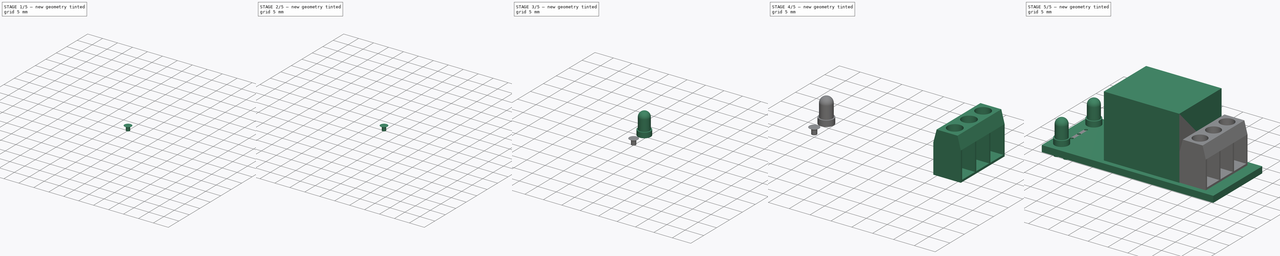
[diagram: build sequence overview — one tinted view per stage of 5, left to right]
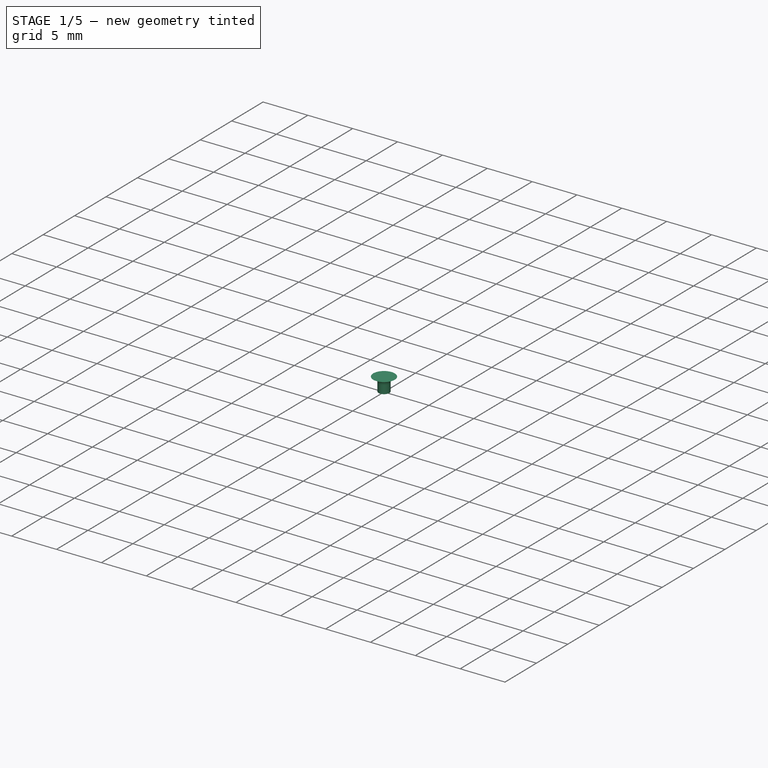
[diagram: stage 1 of 5 — iso view after this stage's code; geometry added in this stage tinted green]
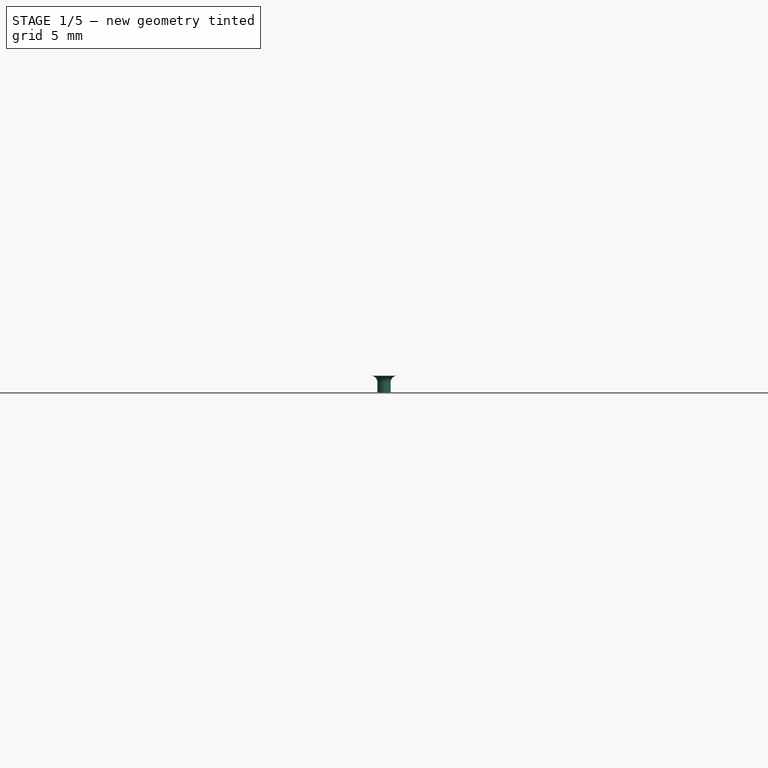
[diagram: stage 1 of 5 — front view after this stage's code; geometry added in this stage tinted green]
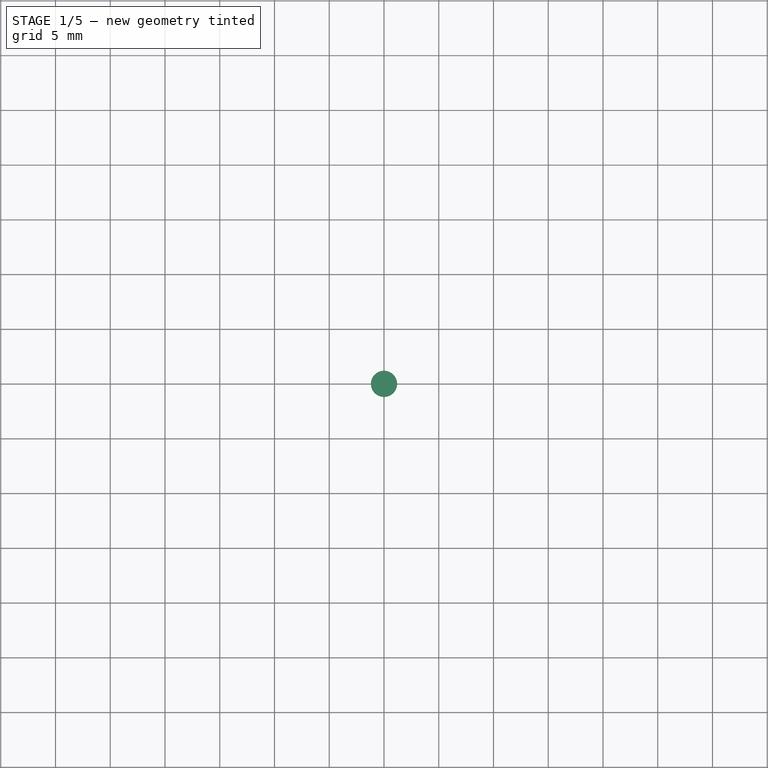
[diagram: stage 1 of 5 — top view after this stage's code; geometry added in this stage tinted green]
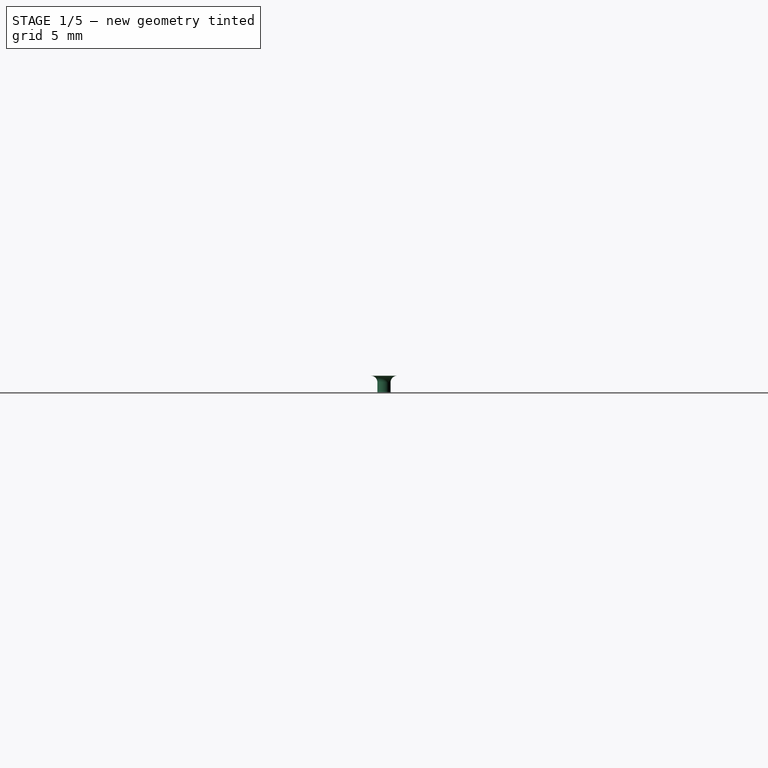
[diagram: stage 1 of 5 — right view after this stage's code; geometry added in this stage tinted green]
FCSTD DOCUMENT  (FreeCAD 0.19R23323 (Git))
Label: Relay 5V 250V JQC-3FF-S-Z
License: All rights reserved
LicenseURL: http://en.wikipedia.org/wiki/All_rights_reserved
objects: Sketcher::SketchObject×14, PartDesign::Body×12, PartDesign::Revolution×9, PartDesign::Pad×3, PartDesign::Pocket×2, Part::Compound×1
note: 55 computed .brp shape members not serialized (recipe doc carries the construction recipe); baked Part::Feature solids carry a one-line shape summary decoded from their .brp

FEATURE [PartDesign::Body] Body008  label="Pin004"
  Group = -> [Sketch010,Revolution005]
  Origin = -> Origin008
  Placement = pos=(1.7,-5.9,0) rot=(0,0,1;0rad)
  Tip = -> Revolution005
FEATURE [Sketcher::SketchObject] Sketch011
  MapMode = 5
  Placement = pos=(0,0,0) rot=(0.57735,0.57735,0.57735;2.0944rad)
  Support = -> [YZ_Plane005]
  sketch-geometry (5):
    g0: LineSegment StartX=1.2 StartY=0 StartZ=0 EndX=0 EndY=0 EndZ=0
    g1: LineSegment StartX=0 StartY=0 StartZ=0 EndX=0 EndY=-1.5 EndZ=0
    g2: LineSegment StartX=0 StartY=-1.5 StartZ=0 EndX=0.6 EndY=-1.5 EndZ=0
    g3: LineSegment StartX=0.6 StartY=-1.5 StartZ=0 EndX=0.6 EndY=-0.6 EndZ=0
    g4: ArcOfCircle CenterX=1.2 CenterY=-0.6 CenterZ=0 NormalX=0 NormalY=0 NormalZ=1 AngleXU=0 Radius=0.6 StartAngle=1.5708 EndAngle=3.14159
  constraints (13):
    c: PointOnObject(g0,g-1)
    c: Coincident(g0,g-1)
    c: Coincident(g0,g1)
    c: PointOnObject(g1,g-2)
    c: Coincident(g1,g2)
    c: Horizontal(g2)
    c: Coincident(g2,g3)
    c: Vertical(g3)
    c: Tangent(g0,g4) = -1.5708
    c: Tangent(g3,g4) = 1.5708
    c: DistanceX(g2,g2) = 0.6
    c: DistanceY(g1,g1) = 1.5
    c: Radius(g4) = 0.6
FEATURE [PartDesign::Revolution] Revolution006
  Angle = 360
  Axis = (-2e-16,3e-16,1)
  Base = (0,0,0)
  Placement = pos=(0,0,0) rot=(0.57735,0.57735,0.57735;2.0944rad)
  Profile = -> Sketch011
  ReferenceAxis = -> Sketch011 [V_Axis]
  Reversed = true
FEATURE [PartDesign::Body] Body009  label="Pin005"
  Group = -> [Sketch011,Revolution006]
  Origin = -> Origin009
  Placement = pos=(37.1,-4.8,0) rot=(0,0,1;0rad)
  Tip = -> Revolution006
FEATURE [Sketcher::SketchObject] Sketch012
  MapMode = 5
  Placement = pos=(0,0,0) rot=(0.57735,0.57735,0.57735;2.0944rad)
  Support = -> [YZ_Plane005]
  sketch-geometry (5):
    g0: LineSegment StartX=1.2 StartY=0 StartZ=0 EndX=0 EndY=0 EndZ=0
    g1: LineSegment StartX=0 StartY=0 StartZ=0 EndX=0 EndY=-1.5 EndZ=0
    g2: LineSegment StartX=0 StartY=-1.5 StartZ=0 EndX=0.6 EndY=-1.5 EndZ=0
    g3: LineSegment StartX=0.6 StartY=-1.5 StartZ=0 EndX=0.6 EndY=-0.6 EndZ=0
    g4: ArcOfCircle CenterX=1.2 CenterY=-0.6 CenterZ=0 NormalX=0 NormalY=0 NormalZ=1 AngleXU=0 Radius=0.6 StartAngle=1.5708 EndAngle=3.14159
  constraints (13):
    c: PointOnObject(g0,g-1)
    c: Coincident(g0,g-1)
    c: Coincident(g0,g1)
    c: PointOnObject(g1,g-2)
    c: Coincident(g1,g2)
    c: Horizontal(g2)
    c: Coincident(g2,g3)
    c: Vertical(g3)
    c: Tangent(g0,g4) = -1.5708
    c: Tangent(g3,g4) = 1.5708
    c: DistanceX(g2,g2) = 0.6
    c: DistanceY(g1,g1) = 1.5
    c: Radius(g4) = 0.6
FEATURE [PartDesign::Revolution] Revolution007
  Angle = 360
  Axis = (-2e-16,3e-16,1)
  Base = (0,0,0)
  Placement = pos=(0,0,0) rot=(0.57735,0.57735,0.57735;2.0944rad)
  Profile = -> Sketch012
  ReferenceAxis = -> Sketch012 [V_Axis]
  Reversed = true
FEATURE [PartDesign::Body] Body010  label="Pin006"
  Group = -> [Sketch012,Revolution007]
  Origin = -> Origin010
  Placement = pos=(37.1,9e-16,0) rot=(0,0,1;0rad)
  Tip = -> Revolution007
FEATURE [Sketcher::SketchObject] Sketch013
  MapMode = 5
  Placement = pos=(0,0,0) rot=(0.57735,0.57735,0.57735;2.0944rad)
  Support = -> [YZ_Plane005]
  sketch-geometry (5):
    g0: LineSegment StartX=1.2 StartY=0 StartZ=0 EndX=0 EndY=0 EndZ=0
    g1: LineSegment StartX=0 StartY=0 StartZ=0 EndX=0 EndY=-1.5 EndZ=0
    g2: LineSegment StartX=0 StartY=-1.5 StartZ=0 EndX=0.6 EndY=-1.5 EndZ=0
    g3: LineSegment StartX=0.6 StartY=-1.5 StartZ=0 EndX=0.6 EndY=-0.6 EndZ=0
    g4: ArcOfCircle CenterX=1.2 CenterY=-0.6 CenterZ=0 NormalX=0 NormalY=0 NormalZ=1 AngleXU=0 Radius=0.6 StartAngle=1.5708 EndAngle=3.14159
  constraints (13):
    c: PointOnObject(g0,g-1)
    c: Coincident(g0,g-1)
    c: Coincident(g0,g1)
    c: PointOnObject(g1,g-2)
    c: Coincident(g1,g2)
    c: Horizontal(g2)
    c: Coincident(g2,g3)
    c: Vertical(g3)
    c: Tangent(g0,g4) = -1.5708
    c: Tangent(g3,g4) = 1.5708
    c: DistanceX(g2,g2) = 0.6
    c: DistanceY(g1,g1) = 1.5
    c: Radius(g4) = 0.6
FEATURE [PartDesign::Revolution] Revolution008
  Angle = 360
  Axis = (-2e-16,3e-16,1)
  Base = (0,0,0)
  Placement = pos=(0,0,0) rot=(0.57735,0.57735,0.57735;2.0944rad)
  Profile = -> Sketch013
  ReferenceAxis = -> Sketch013 [V_Axis]
  Reversed = true
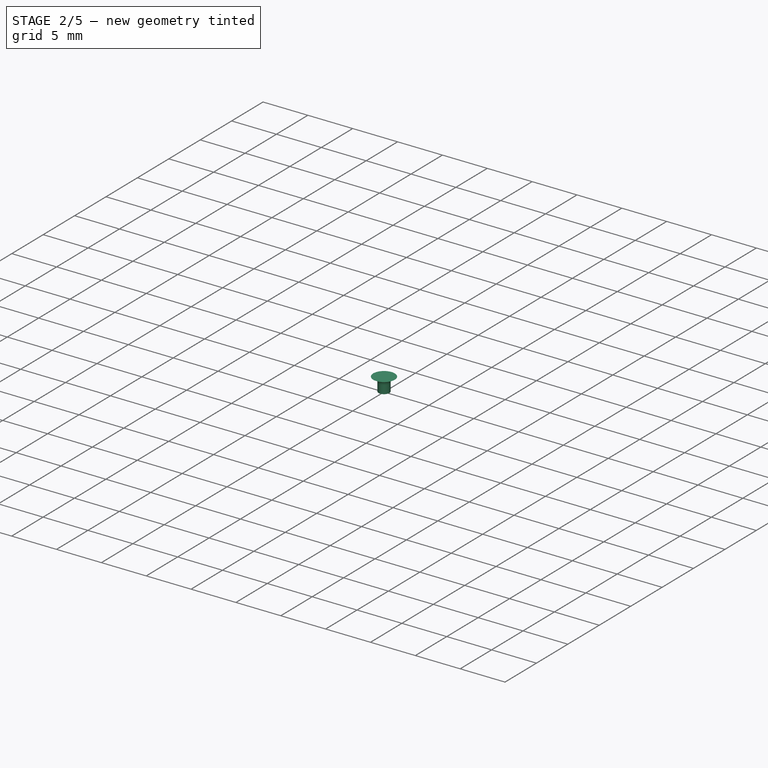
[diagram: stage 2 of 5 — iso view after this stage's code; geometry added in this stage tinted green]
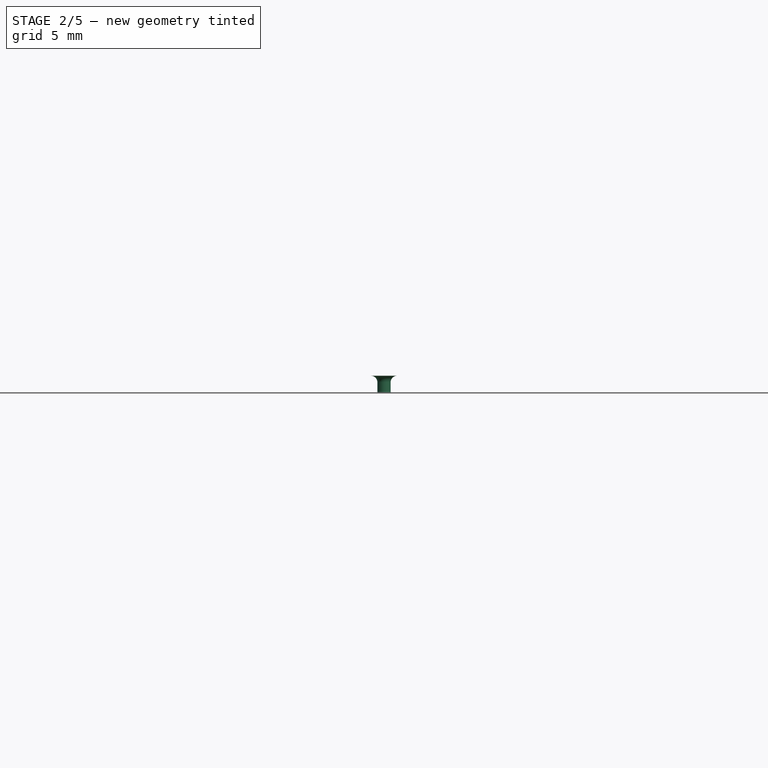
[diagram: stage 2 of 5 — front view after this stage's code; geometry added in this stage tinted green]
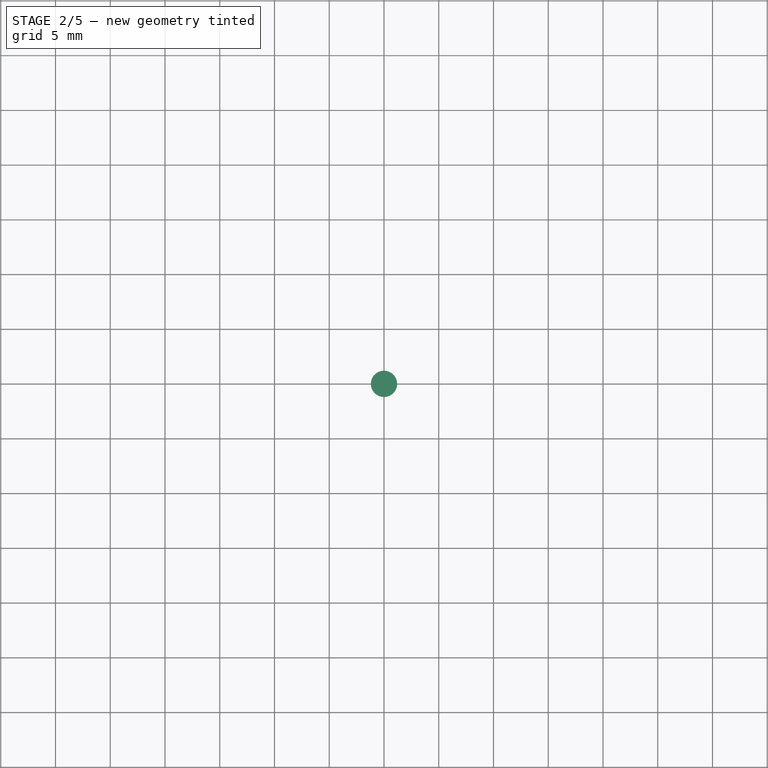
[diagram: stage 2 of 5 — top view after this stage's code; geometry added in this stage tinted green]
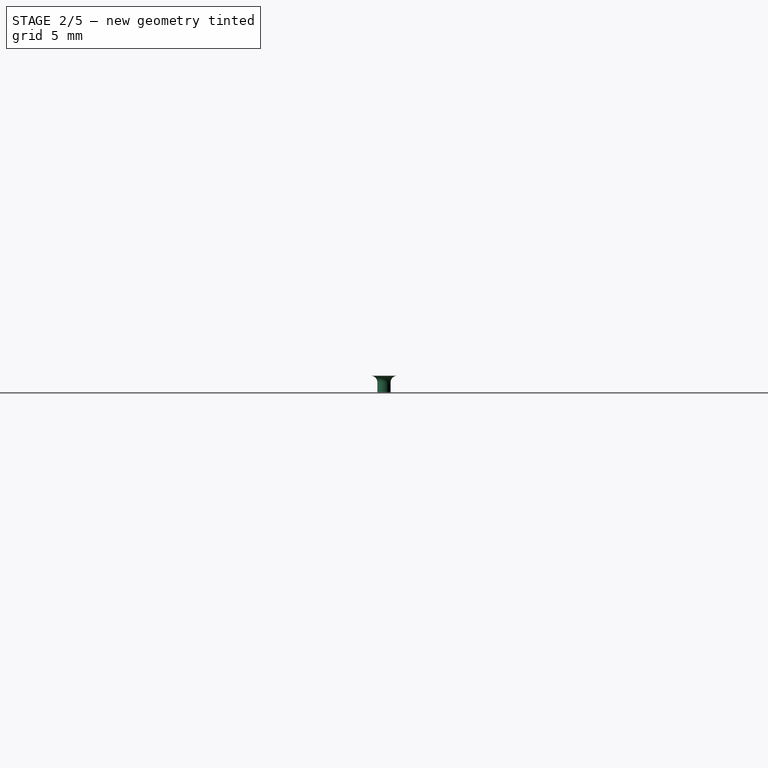
[diagram: stage 2 of 5 — right view after this stage's code; geometry added in this stage tinted green]
FEATURE [PartDesign::Body] Body005  label="Pin001"
  Group = -> [Sketch007,Revolution002]
  Origin = -> Origin005
  Placement = pos=(1.7,5.7,0) rot=(0,0,1;0rad)
  Tip = -> Revolution002
FEATURE [Sketcher::SketchObject] Sketch008
  MapMode = 5
  Placement = pos=(0,0,0) rot=(0.57735,0.57735,0.57735;2.0944rad)
  Support = -> [YZ_Plane005]
  sketch-geometry (5):
    g0: LineSegment StartX=1.2 StartY=0 StartZ=0 EndX=0 EndY=0 EndZ=0
    g1: LineSegment StartX=0 StartY=0 StartZ=0 EndX=0 EndY=-1.5 EndZ=0
    g2: LineSegment StartX=0 StartY=-1.5 StartZ=0 EndX=0.6 EndY=-1.5 EndZ=0
    g3: LineSegment StartX=0.6 StartY=-1.5 StartZ=0 EndX=0.6 EndY=-0.6 EndZ=0
    g4: ArcOfCircle CenterX=1.2 CenterY=-0.6 CenterZ=0 NormalX=0 NormalY=0 NormalZ=1 AngleXU=0 Radius=0.6 StartAngle=1.5708 EndAngle=3.14159
  constraints (13):
    c: PointOnObject(g0,g-1)
    c: Coincident(g0,g-1)
    c: Coincident(g0,g1)
    c: PointOnObject(g1,g-2)
    c: Coincident(g1,g2)
    c: Horizontal(g2)
    c: Coincident(g2,g3)
    c: Vertical(g3)
    c: Tangent(g0,g4) = -1.5708
    c: Tangent(g3,g4) = 1.5708
    c: DistanceX(g2,g2) = 0.6
    c: DistanceY(g1,g1) = 1.5
    c: Radius(g4) = 0.6
FEATURE [PartDesign::Revolution] Revolution003
  Angle = 360
  Axis = (-2e-16,3e-16,1)
  Base = (0,0,0)
  Placement = pos=(0,0,0) rot=(0.57735,0.57735,0.57735;2.0944rad)
  Profile = -> Sketch008
  ReferenceAxis = -> Sketch008 [V_Axis]
  Reversed = true
FEATURE [PartDesign::Body] Body006  label="Pin002"
  Group = -> [Sketch008,Revolution003]
  Origin = -> Origin006
  Placement = pos=(4.1,5.7,0) rot=(0,0,1;0rad)
  Tip = -> Revolution003
FEATURE [Sketcher::SketchObject] Sketch009
  MapMode = 5
  Placement = pos=(0,0,0) rot=(0.57735,0.57735,0.57735;2.0944rad)
  Support = -> [YZ_Plane005]
  sketch-geometry (5):
    g0: LineSegment StartX=1.2 StartY=0 StartZ=0 EndX=0 EndY=0 EndZ=0
    g1: LineSegment StartX=0 StartY=0 StartZ=0 EndX=0 EndY=-1.5 EndZ=0
    g2: LineSegment StartX=0 StartY=-1.5 StartZ=0 EndX=0.6 EndY=-1.5 EndZ=0
    g3: LineSegment StartX=0.6 StartY=-1.5 StartZ=0 EndX=0.6 EndY=-0.6 EndZ=0
    g4: ArcOfCircle CenterX=1.2 CenterY=-0.6 CenterZ=0 NormalX=0 NormalY=0 NormalZ=1 AngleXU=0 Radius=0.6 StartAngle=1.5708 EndAngle=3.14159
  constraints (13):
    c: PointOnObject(g0,g-1)
    c: Coincident(g0,g-1)
    c: Coincident(g0,g1)
    c: PointOnObject(g1,g-2)
    c: Coincident(g1,g2)
    c: Horizontal(g2)
    c: Coincident(g2,g3)
    c: Vertical(g3)
    c: Tangent(g0,g4) = -1.5708
    c: Tangent(g3,g4) = 1.5708
    c: DistanceX(g2,g2) = 0.6
    c: DistanceY(g1,g1) = 1.5
    c: Radius(g4) = 0.6
FEATURE [PartDesign::Revolution] Revolution004
  Angle = 360
  Axis = (-2e-16,3e-16,1)
  Base = (0,0,0)
  Placement = pos=(0,0,0) rot=(0.57735,0.57735,0.57735;2.0944rad)
  Profile = -> Sketch009
  ReferenceAxis = -> Sketch009 [V_Axis]
  Reversed = true
FEATURE [PartDesign::Body] Body007  label="Pin003"
  Group = -> [Sketch009,Revolution004]
  Origin = -> Origin007
  Placement = pos=(4.1,-5.9,0) rot=(0,0,1;0rad)
  Tip = -> Revolution004
FEATURE [Sketcher::SketchObject] Sketch010
  MapMode = 5
  Placement = pos=(0,0,0) rot=(0.57735,0.57735,0.57735;2.0944rad)
  Support = -> [YZ_Plane005]
  sketch-geometry (5):
    g0: LineSegment StartX=1.2 StartY=0 StartZ=0 EndX=0 EndY=0 EndZ=0
    g1: LineSegment StartX=0 StartY=0 StartZ=0 EndX=0 EndY=-1.5 EndZ=0
    g2: LineSegment StartX=0 StartY=-1.5 StartZ=0 EndX=0.6 EndY=-1.5 EndZ=0
    g3: LineSegment StartX=0.6 StartY=-1.5 StartZ=0 EndX=0.6 EndY=-0.6 EndZ=0
    g4: ArcOfCircle CenterX=1.2 CenterY=-0.6 CenterZ=0 NormalX=0 NormalY=0 NormalZ=1 AngleXU=0 Radius=0.6 StartAngle=1.5708 EndAngle=3.14159
  constraints (13):
    c: PointOnObject(g0,g-1)
    c: Coincident(g0,g-1)
    c: Coincident(g0,g1)
    c: PointOnObject(g1,g-2)
    c: Coincident(g1,g2)
    c: Horizontal(g2)
    c: Coincident(g2,g3)
    c: Vertical(g3)
    c: Tangent(g0,g4) = -1.5708
    c: Tangent(g3,g4) = 1.5708
    c: DistanceX(g2,g2) = 0.6
    c: DistanceY(g1,g1) = 1.5
    c: Radius(g4) = 0.6
FEATURE [PartDesign::Revolution] Revolution005
  Angle = 360
  Axis = (-2e-16,3e-16,1)
  Base = (0,0,0)
  Placement = pos=(0,0,0) rot=(0.57735,0.57735,0.57735;2.0944rad)
  Profile = -> Sketch010
  ReferenceAxis = -> Sketch010 [V_Axis]
  Reversed = true
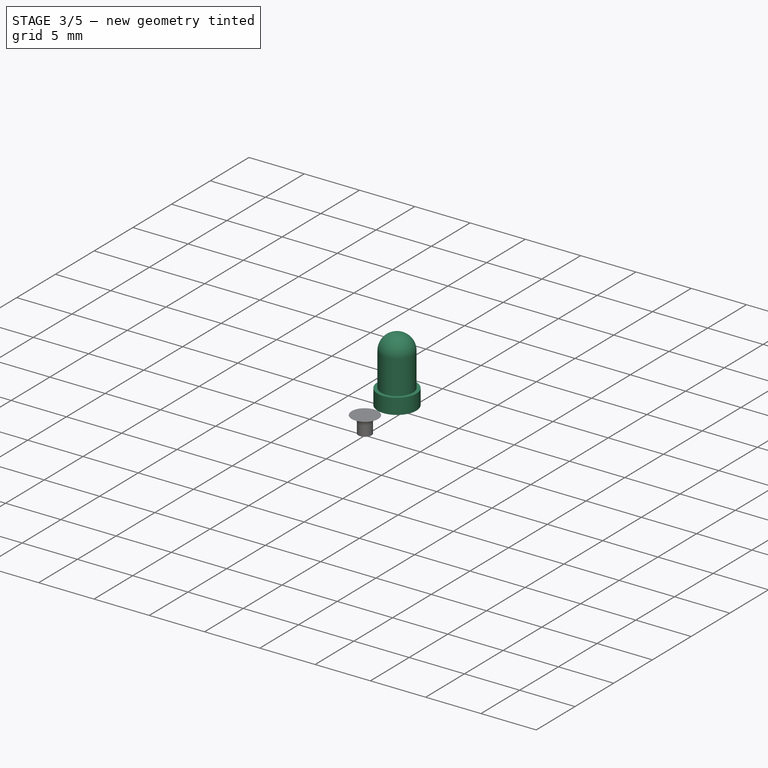
[diagram: stage 3 of 5 — iso view after this stage's code; geometry added in this stage tinted green]
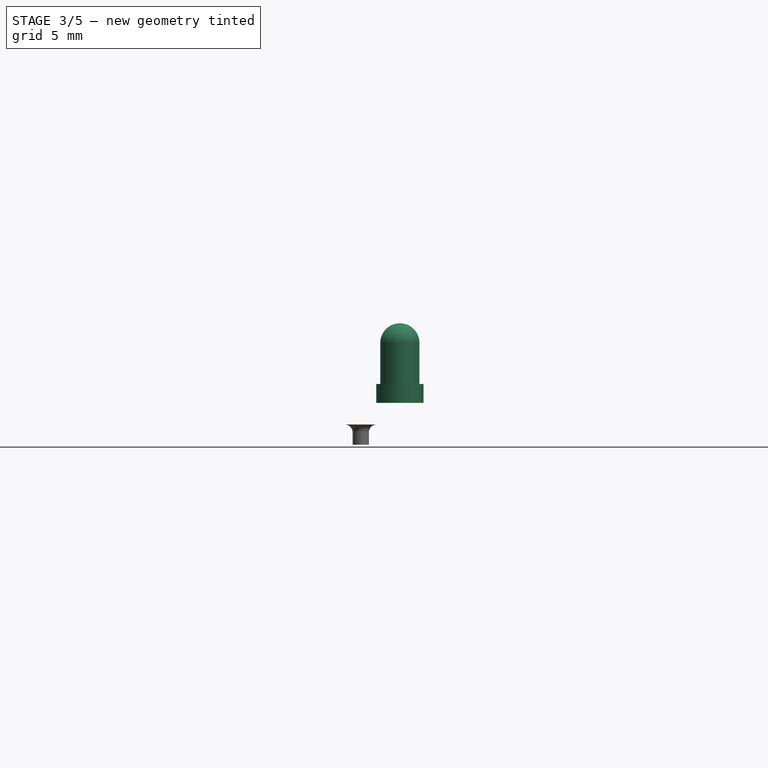
[diagram: stage 3 of 5 — front view after this stage's code; geometry added in this stage tinted green]
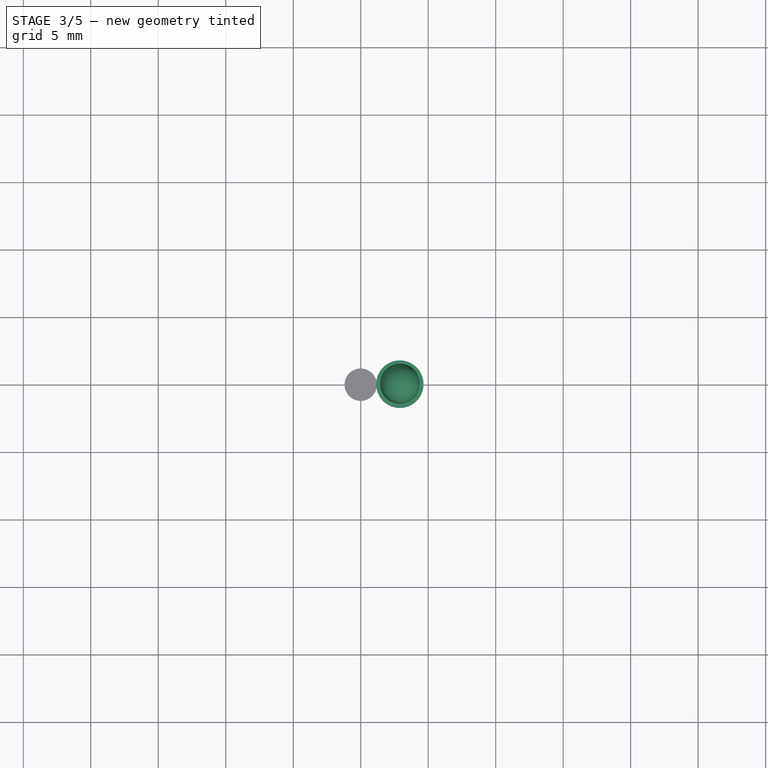
[diagram: stage 3 of 5 — top view after this stage's code; geometry added in this stage tinted green]
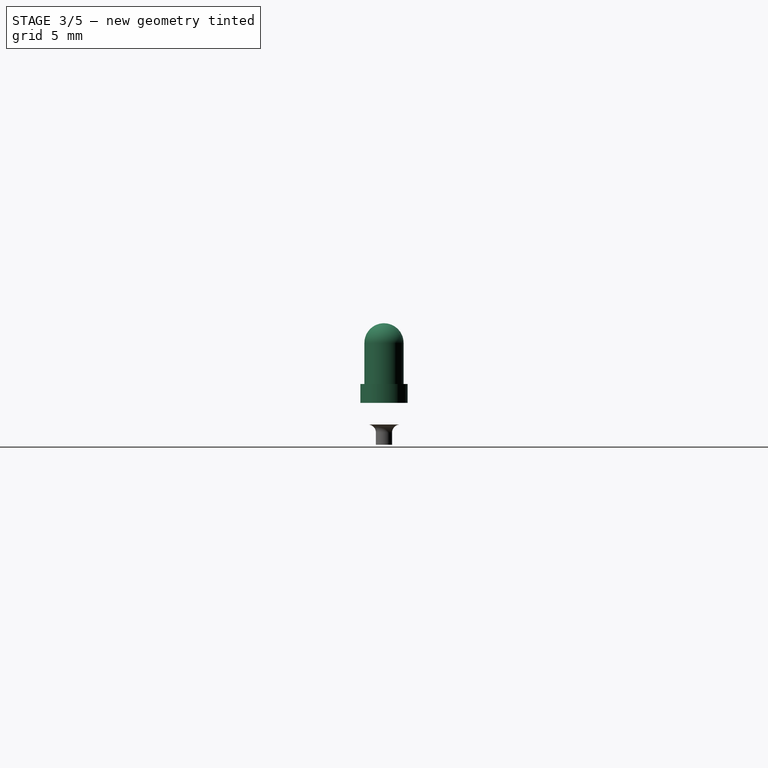
[diagram: stage 3 of 5 — right view after this stage's code; geometry added in this stage tinted green]
FEATURE [PartDesign::Body] Body002  label="Connectors"
  Group = -> [Sketch002,Pad002,Sketch003,Pocket,Sketch004,Pocket001]
  Origin = -> Origin002
  Tip = -> Pocket001
FEATURE [Sketcher::SketchObject] Sketch005
  AttachmentOffset = pos=(0,0,2.9) rot=(0,0,1;0rad)
  MapMode = 5
  Placement = pos=(2.9,-6e-16,6e-16) rot=(0.57735,0.57735,0.57735;2.0944rad)
  Support = -> [YZ_Plane003]
  sketch-geometry (6):
    g0: ArcOfCircle CenterX=0 CenterY=6.05 CenterZ=0 NormalX=0 NormalY=0 NormalZ=1 AngleXU=0 Radius=1.45 StartAngle=1.5708 EndAngle=3.14159
    g1: LineSegment StartX=-1.45 StartY=6.05 StartZ=0 EndX=-1.45 EndY=3 EndZ=0
    g2: LineSegment StartX=-1.45 StartY=3 StartZ=0 EndX=-1.75 EndY=3 EndZ=0
    g3: LineSegment StartX=-1.75 StartY=3 StartZ=0 EndX=-1.75 EndY=1.6 EndZ=0
    g4: LineSegment StartX=-1.75 StartY=1.6 StartZ=0 EndX=0 EndY=1.6 EndZ=0
    g5: LineSegment StartX=0 StartY=1.6 StartZ=0 EndX=0 EndY=7.5 EndZ=0
  constraints (18):
    c: Vertical(g1)
    c: Coincident(g1,g2)
    c: Coincident(g2,g3)
    c: Coincident(g3,g4)
    c: Horizontal(g4)
    c: Coincident(g4,g5)
    c: Coincident(g5,g0)
    c: Vertical(g5)
    c: Tangent(g0,g1) = -1.5708
    c: PointOnObject(g0,g5)
    c: Horizontal(g2)
    c: Vertical(g3)
    c: DistanceY(g3) = 1.6
    c: DistanceY(g0) = 7.5
    c: DistanceX(g0,g0) = 1.45
    c: DistanceX(g4,g4) = 1.75
    c: DistanceY(g2) = 3
    c: PointOnObject(g4,g-2)
FEATURE [PartDesign::Revolution] Revolution
  Angle = 360
  Axis = (-2e-16,3e-16,1)
  Base = (2.9,-6e-16,6e-16)
  Placement = pos=(0,0,0) rot=(0.57735,0.57735,0.57735;2.0944rad)
  Profile = -> Sketch005
  ReferenceAxis = -> Sketch005 [V_Axis]
FEATURE [PartDesign::Body] Body003  label="LEDgreen"
  Group = -> [Sketch005,Revolution]
  Origin = -> Origin003
  Placement = pos=(0,5.8,0) rot=(0,0,1;0rad)
  Tip = -> Revolution
FEATURE [Sketcher::SketchObject] Sketch006
  AttachmentOffset = pos=(0,0,2.9) rot=(0,0,1;0rad)
  MapMode = 5
  Placement = pos=(2.9,-6e-16,6e-16) rot=(0.57735,0.57735,0.57735;2.0944rad)
  Support = -> [YZ_Plane003]
  sketch-geometry (6):
    g0: ArcOfCircle CenterX=0 CenterY=6.05 CenterZ=0 NormalX=0 NormalY=0 NormalZ=1 AngleXU=0 Radius=1.45 StartAngle=1.5708 EndAngle=3.14159
    g1: LineSegment StartX=-1.45 StartY=6.05 StartZ=0 EndX=-1.45 EndY=3 EndZ=0
    g2: LineSegment StartX=-1.45 StartY=3 StartZ=0 EndX=-1.75 EndY=3 EndZ=0
    g3: LineSegment StartX=-1.75 StartY=3 StartZ=0 EndX=-1.75 EndY=1.6 EndZ=0
    g4: LineSegment StartX=-1.75 StartY=1.6 StartZ=0 EndX=0 EndY=1.6 EndZ=0
    g5: LineSegment StartX=1e-16 StartY=1.6 StartZ=0 EndX=1e-16 EndY=7.5 EndZ=0
  constraints (18):
    c: Vertical(g1)
    c: Coincident(g1,g2)
    c: Coincident(g2,g3)
    c: Coincident(g3,g4)
    c: Horizontal(g4)
    c: Coincident(g4,g5)
    c: Coincident(g5,g0)
    c: Vertical(g5)
    c: Tangent(g0,g1) = -1.5708
    c: PointOnObject(g0,g5)
    c: Horizontal(g2)
    c: Vertical(g3)
    c: DistanceY(g3) = 1.6
    c: DistanceY(g0) = 7.5
    c: DistanceX(g0,g0) = 1.45
    c: DistanceX(g4,g4) = 1.75
    c: DistanceY(g2) = 3
    c: PointOnObject(g4,g-2)
FEATURE [PartDesign::Revolution] Revolution001
  Angle = 360
  Axis = (-2e-16,3e-16,1)
  Base = (2.9,-6e-16,6e-16)
  Placement = pos=(0,0,0) rot=(0.57735,0.57735,0.57735;2.0944rad)
  Profile = -> Sketch006
  ReferenceAxis = -> Sketch006 [V_Axis]
FEATURE [PartDesign::Body] Body004  label="LEDred"
  Group = -> [Sketch006,Revolution001]
  Origin = -> Origin004
  Placement = pos=(0,-5.8,0) rot=(0,0,1;0rad)
  Tip = -> Revolution001
FEATURE [Sketcher::SketchObject] Sketch007
  MapMode = 5
  Placement = pos=(0,0,0) rot=(0.57735,0.57735,0.57735;2.0944rad)
  Support = -> [YZ_Plane005]
  sketch-geometry (5):
    g0: LineSegment StartX=1.2 StartY=0 StartZ=0 EndX=0 EndY=0 EndZ=0
    g1: LineSegment StartX=0 StartY=0 StartZ=0 EndX=0 EndY=-1.5 EndZ=0
    g2: LineSegment StartX=0 StartY=-1.5 StartZ=0 EndX=0.6 EndY=-1.5 EndZ=0
    g3: LineSegment StartX=0.6 StartY=-1.5 StartZ=0 EndX=0.6 EndY=-0.6 EndZ=0
    g4: ArcOfCircle CenterX=1.2 CenterY=-0.6 CenterZ=0 NormalX=0 NormalY=0 NormalZ=1 AngleXU=0 Radius=0.6 StartAngle=1.5708 EndAngle=3.14159
  constraints (13):
    c: PointOnObject(g0,g-1)
    c: Coincident(g0,g-1)
    c: Coincident(g0,g1)
    c: PointOnObject(g1,g-2)
    c: Coincident(g1,g2)
    c: Horizontal(g2)
    c: Coincident(g2,g3)
    c: Vertical(g3)
    c: Tangent(g0,g4) = -1.5708
    c: Tangent(g3,g4) = 1.5708
    c: DistanceX(g2,g2) = 0.6
    c: DistanceY(g1,g1) = 1.5
    c: Radius(g4) = 0.6
FEATURE [PartDesign::Revolution] Revolution002
  Angle = 360
  Axis = (-2e-16,3e-16,1)
  Base = (0,0,0)
  Placement = pos=(0,0,0) rot=(0.57735,0.57735,0.57735;2.0944rad)
  Profile = -> Sketch007
  ReferenceAxis = -> Sketch007 [V_Axis]
  Reversed = true
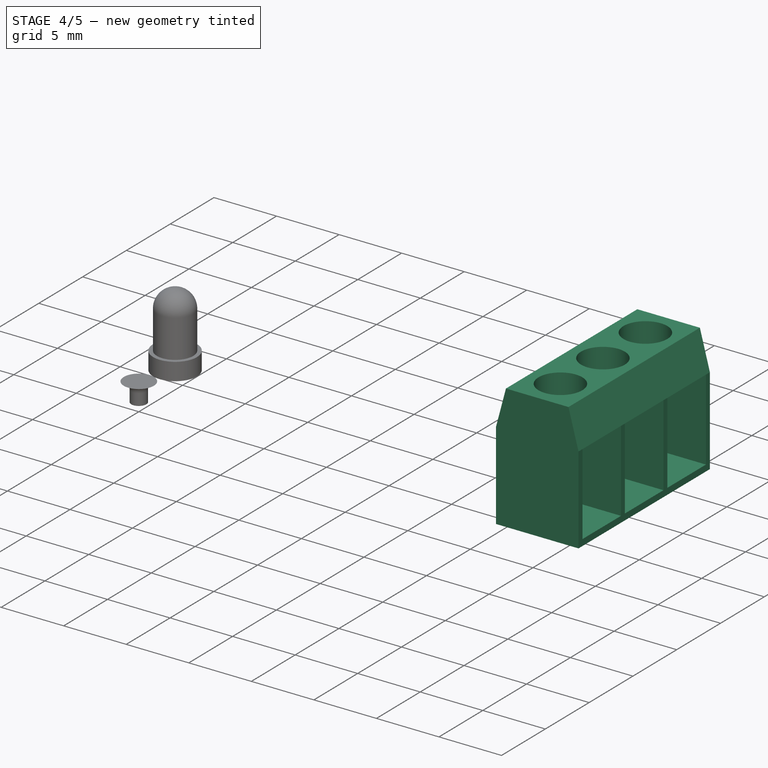
[diagram: stage 4 of 5 — iso view after this stage's code; geometry added in this stage tinted green]
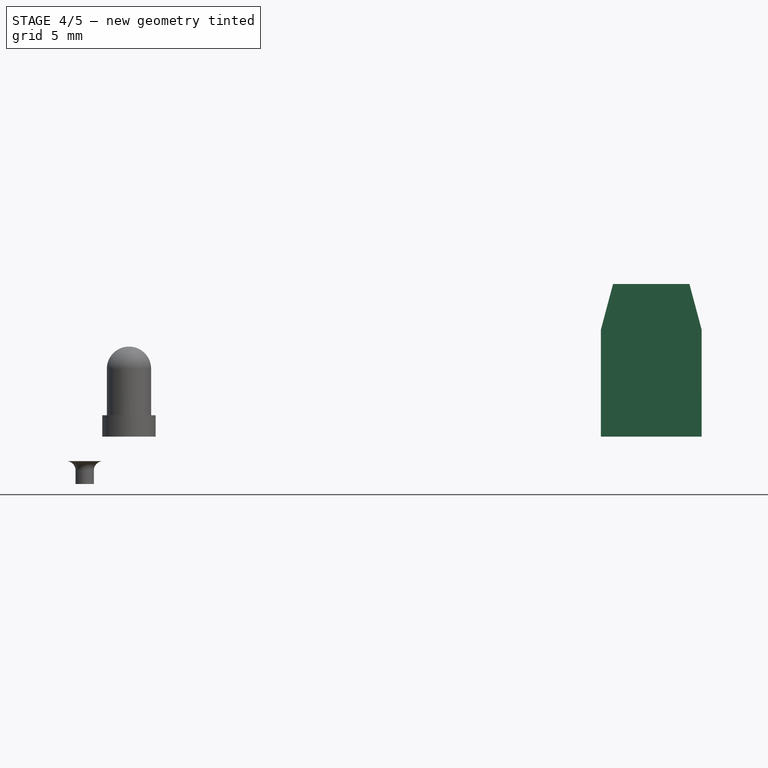
[diagram: stage 4 of 5 — front view after this stage's code; geometry added in this stage tinted green]
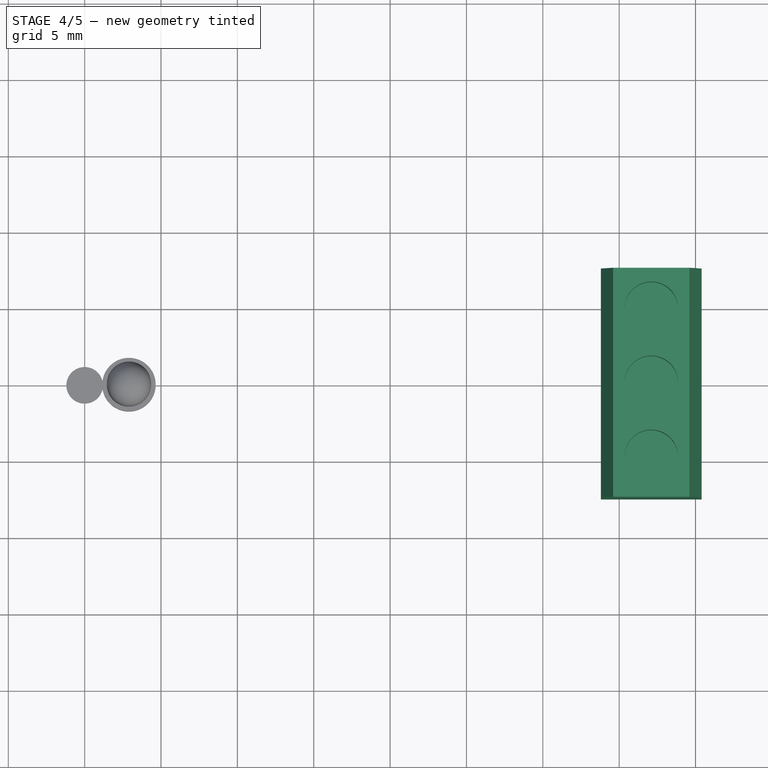
[diagram: stage 4 of 5 — top view after this stage's code; geometry added in this stage tinted green]
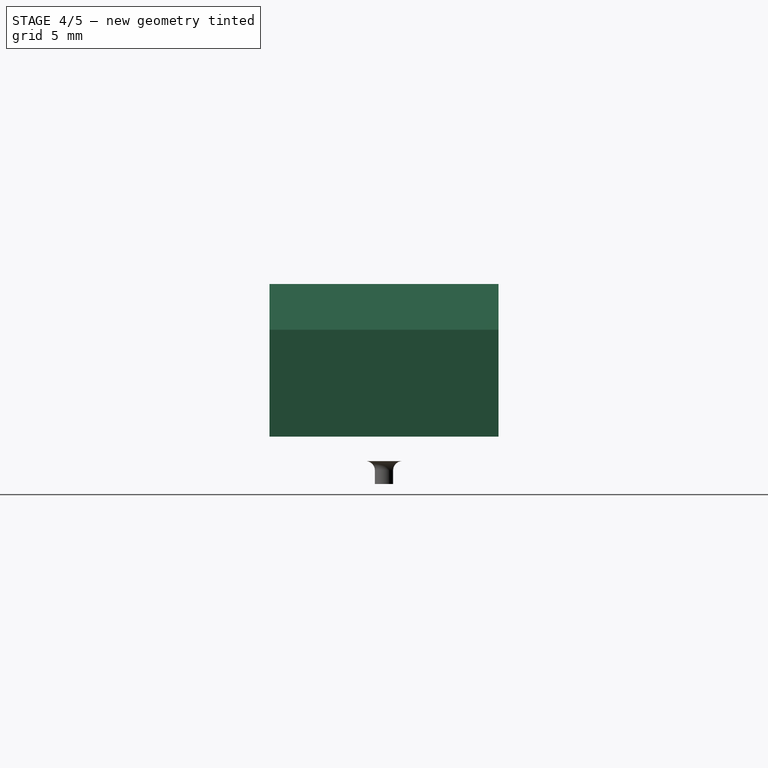
[diagram: stage 4 of 5 — right view after this stage's code; geometry added in this stage tinted green]
FEATURE [PartDesign::Body] Body001  label="JQC-3FF-S-Z"
  Group = -> [Sketch001,Pad001]
  Origin = -> Origin001
  Tip = -> Pad001
FEATURE [Sketcher::SketchObject] Sketch002
  MapMode = 5
  Placement = pos=(0,0,0) rot=(1,0,0;1.5708rad)
  Support = -> [XZ_Plane002]
  sketch-geometry (7):
    g0: LineSegment StartX=34.6 StartY=11.6 StartZ=0 EndX=39.6 EndY=11.6 EndZ=0
    g1: LineSegment StartX=40.4 StartY=8.6 StartZ=0 EndX=40.4 EndY=1.6 EndZ=0
    g2: LineSegment StartX=40.4 StartY=1.6 StartZ=0 EndX=33.8 EndY=1.6 EndZ=0
    g3: LineSegment StartX=33.8 StartY=1.6 StartZ=0 EndX=33.8 EndY=8.6 EndZ=0
    g4: LineSegment StartX=34.6 StartY=11.6 StartZ=0 EndX=33.8 EndY=8.6 EndZ=0
    g5: LineSegment StartX=39.6 StartY=11.6 StartZ=0 EndX=40.4 EndY=8.6 EndZ=0
    g6: LineSegment StartX=37.1 StartY=11.6 StartZ=0 EndX=37.1 EndY=1.6 EndZ=0
  constraints (19):
    c: Coincident(g1,g2)
    c: Coincident(g2,g3)
    c: Horizontal(g0)
    c: Vertical(g1)
    c: DistanceY(g1) = 1.6
    c: Coincident(g3,g4)
    c: Coincident(g4,g0)
    c: Coincident(g0,g5)
    c: Coincident(g1,g5)
    c: PointOnObject(g6,g0)
    c: PointOnObject(g6,g2)
    c: Symmetric(g1,g2,g6)
    c: Symmetric(g1,g3,g6)
    c: Symmetric(g0,g0,g6)
    c: DistanceX(g2) = 33.8
    c: DistanceX(g0,g0) = 5
    c: DistanceY(g1,g0) = 10
    c: DistanceY(g1,g1) = 7
    c: DistanceX(g1) = 40.4
FEATURE [PartDesign::Pad] Pad002
  Direction = (1,1,1)
  Length = 15
  Length2 = 100
  Midplane = true
  Placement = pos=(0,0,0) rot=(1,0,0;1.5708rad)
  Profile = -> Sketch002
  Type = 0
FEATURE [Sketcher::SketchObject] Sketch003
  AttachmentOffset = pos=(0,0,36) rot=(0,0,1;0rad)
  MapMode = 5
  Placement = pos=(36,-8e-15,8e-15) rot=(0.57735,0.57735,0.57735;2.0944rad)
  Support = -> [YZ_Plane002]
  sketch-geometry (16):
    g0: LineSegment StartX=-7.05 StartY=8.6 StartZ=0 EndX=-2.65 EndY=8.6 EndZ=0
    g1: LineSegment StartX=-2.65 StartY=8.6 StartZ=0 EndX=-2.65 EndY=2.1 EndZ=0
    g2: LineSegment StartX=-2.65 StartY=2.1 StartZ=0 EndX=-7.05 EndY=2.1 EndZ=0
    g3: LineSegment StartX=-7.05 StartY=2.1 StartZ=0 EndX=-7.05 EndY=8.6 EndZ=0
    g4: LineSegment StartX=-7.05 StartY=8.6 StartZ=0 EndX=-7.5 EndY=8.6 EndZ=0
    g5: LineSegment StartX=-2.2 StartY=8.6 StartZ=0 EndX=-2.65 EndY=8.6 EndZ=0
    g6: LineSegment StartX=-2.2 StartY=8.6 StartZ=0 EndX=2.2 EndY=8.6 EndZ=0
    g7: LineSegment StartX=2.2 StartY=8.6 StartZ=0 EndX=2.2 EndY=2.1 EndZ=0
    g8: LineSegment StartX=2.2 StartY=2.1 StartZ=0 EndX=-2.2 EndY=2.1 EndZ=0
    g9: LineSegment StartX=-2.2 StartY=2.1 StartZ=0 EndX=-2.2 EndY=8.6 EndZ=0
    g10: LineSegment StartX=2.65 StartY=8.6 StartZ=0 EndX=7.05 EndY=8.6 EndZ=0
    g11: LineSegment StartX=7.05 StartY=8.6 StartZ=0 EndX=7.05 EndY=2.1 EndZ=0
    g12: LineSegment StartX=7.05 StartY=2.1 StartZ=0 EndX=2.65 EndY=2.1 EndZ=0
    g13: LineSegment StartX=2.65 StartY=2.1 StartZ=0 EndX=2.65 EndY=8.6 EndZ=0
    g14: LineSegment StartX=2.65 StartY=8.6 StartZ=0 EndX=2.2 EndY=8.6 EndZ=0
    g15: LineSegment StartX=7.05 StartY=8.6 StartZ=0 EndX=7.5 EndY=8.6 EndZ=0
  constraints (45):
    c: Coincident(g0,g1)
    c: Coincident(g1,g2)
    c: Coincident(g2,g3)
    c: Coincident(g3,g0)
    c: Horizontal(g0)
    c: Horizontal(g2)
    c: Vertical(g1)
    c: Vertical(g3)
    c: DistanceX(g0,g0) = 4.4
    c: DistanceY(g0) = 8.6
    c: DistanceY(g3,g3) = 6.5
    c: Coincident(g4,g0)
    c: Horizontal(g4)
    c: Coincident(g5,g0)
    c: Equal(g5,g4)
    c: Horizontal(g5)
    c: Coincident(g6,g7)
    c: Coincident(g7,g8)
    c: Coincident(g8,g9)
    c: Coincident(g9,g6)
    c: Horizontal(g6)
    c: Horizontal(g8)
    c: Vertical(g7)
    c: Vertical(g9)
    c: Coincident(g6,g5)
    c: Coincident(g10,g11)
    c: Coincident(g11,g12)
    c: Coincident(g12,g13)
    c: Coincident(g13,g10)
    c: Horizontal(g10)
    c: Horizontal(g12)
    c: Vertical(g11)
    c: Vertical(g13)
    c: Coincident(g14,g10)
    c: Coincident(g14,g6)
    c: Horizontal(g14)
    c: Coincident(g15,g10)
    c: Equal(g15,g14)
    c: Equal(g14,g5)
    c: DistanceX(g4,g15) = 15
    c: Equal(g0,g6)
    c: Equal(g6,g10)
    c: Symmetric(g4,g15,g-2)
    c: Equal(g1,g9)
    c: Equal(g9,g13)
FEATURE [PartDesign::Pocket] Pocket
  BaseFeature = -> Pad002
  Length = 5
  Length2 = 100
  Placement = pos=(0,0,0) rot=(1,0,0;1.5708rad)
  Profile = -> Sketch003
  Reversed = true
  Type = 1
FEATURE [Sketcher::SketchObject] Sketch004
  AttachmentOffset = pos=(0,0,8.6) rot=(0,0,1;0rad)
  ExternalGeometry = -> [Pocket]
  MapMode = 5
  Placement = pos=(0,0,8.6) rot=(0,0,1;0rad)
  Support = -> [XY_Plane002]
  sketch-geometry (5):
    g0: Circle CenterX=37.1 CenterY=-4.85 CenterZ=0 NormalX=0 NormalY=0 NormalZ=1 AngleXU=0 Radius=1.75
    g1: LineSegment StartX=37.1 StartY=-2.65 StartZ=0 EndX=37.1 EndY=-7.05 EndZ=0
    g2: LineSegment StartX=38.85 StartY=-4.85 StartZ=0 EndX=35.35 EndY=-4.85 EndZ=0
    g3: Circle CenterX=37.1 CenterY=4.85 CenterZ=0 NormalX=0 NormalY=0 NormalZ=1 AngleXU=0 Radius=1.75
    g4: Circle CenterX=37.1 CenterY=0 CenterZ=0 NormalX=0 NormalY=0 NormalZ=1 AngleXU=0 Radius=1.75
  constraints (14):
    c: PointOnObject(g1,g-3)
    c: PointOnObject(g1,g-4)
    c: PointOnObject(g2,g0)
    c: PointOnObject(g2,g0)
    c: PointOnObject(g0,g1)
    c: PointOnObject(g0,g2)
    c: Symmetric(g-3,g-4,g2)
    c: Radius(g0) = 1.75
    c: Symmetric(g-5,g-6,g1)
    c: PointOnObject(g4,g-1)
    c: Symmetric(g3,g0,g-1)
    c: PointOnObject(g4,g1)
    c: Equal(g0,g4)
    c: Equal(g4,g3)
FEATURE [PartDesign::Pocket] Pocket001
  BaseFeature = -> Pocket
  Length = 5
  Length2 = 100
  Placement = pos=(0,0,0) rot=(1,0,0;1.5708rad)
  Profile = -> Sketch004
  Reversed = true
  Type = 1
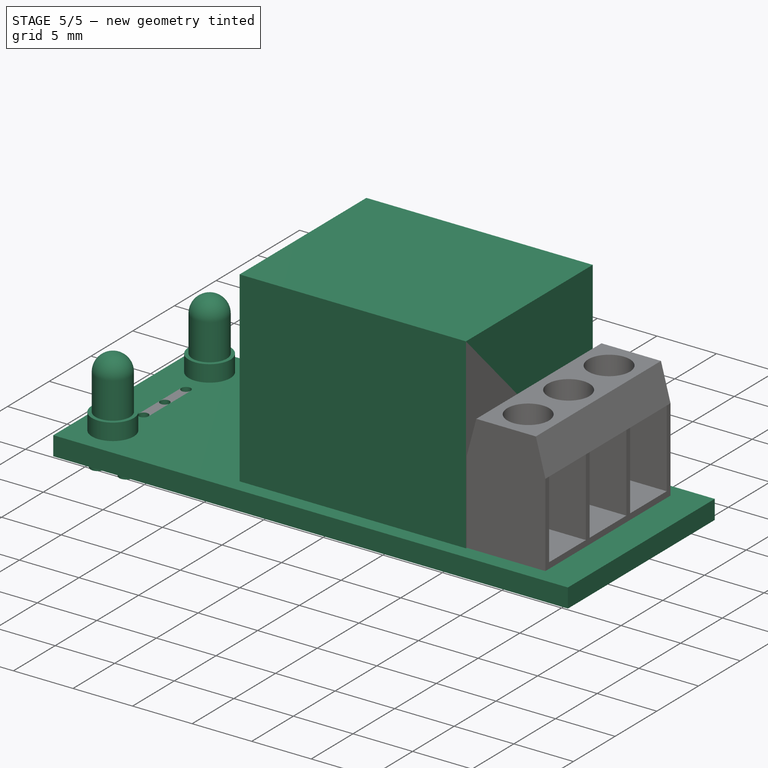
[diagram: stage 5 of 5 — iso view after this stage's code; geometry added in this stage tinted green]
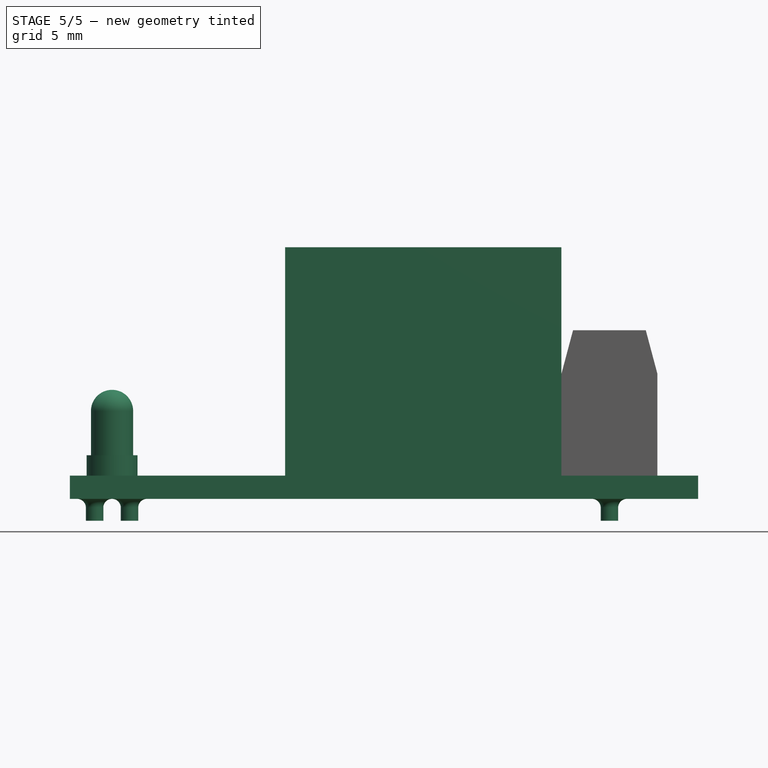
[diagram: stage 5 of 5 — front view after this stage's code; geometry added in this stage tinted green]
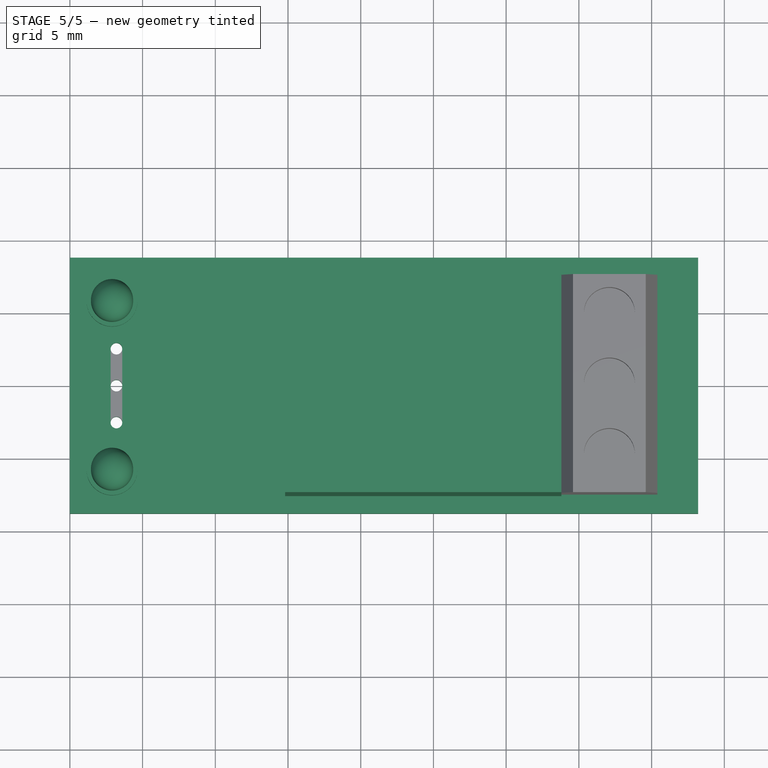
[diagram: stage 5 of 5 — top view after this stage's code; geometry added in this stage tinted green]
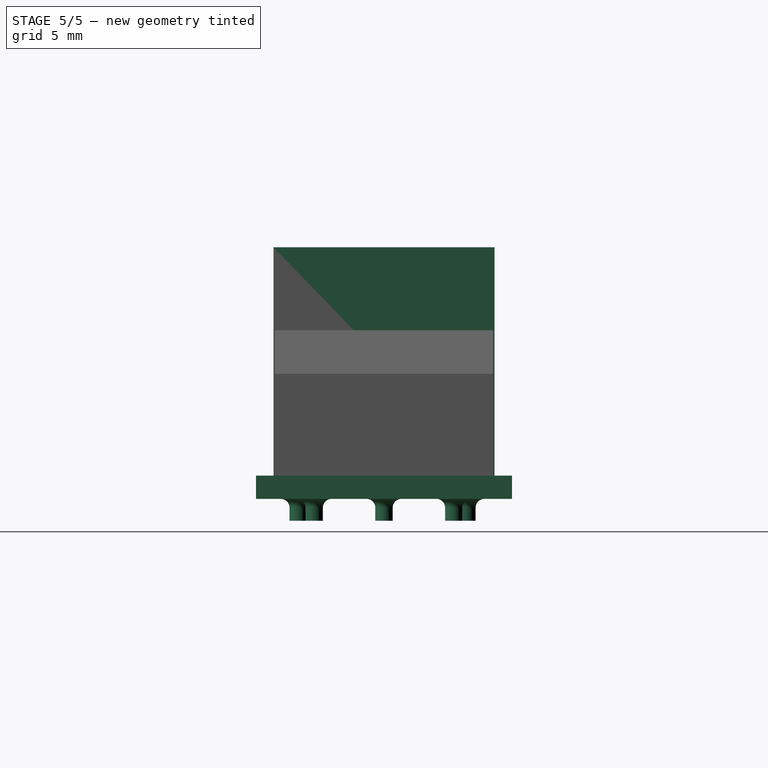
[diagram: stage 5 of 5 — right view after this stage's code; geometry added in this stage tinted green]
FEATURE [Sketcher::SketchObject] Sketch
  MapMode = 5
  Support = -> [XY_Plane]
  sketch-geometry (8):
    g0: LineSegment StartX=0 StartY=8.8 StartZ=0 EndX=43.2 EndY=8.8 EndZ=0
    g1: LineSegment StartX=43.2 StartY=8.8 StartZ=0 EndX=43.2 EndY=-8.8 EndZ=0
    g2: LineSegment StartX=43.2 StartY=-8.8 StartZ=0 EndX=0 EndY=-8.8 EndZ=0
    g3: LineSegment StartX=0 StartY=-8.8 StartZ=0 EndX=0 EndY=8.8 EndZ=0
    g4: Circle CenterX=3.2 CenterY=2.54 CenterZ=0 NormalX=0 NormalY=0 NormalZ=1 AngleXU=0 Radius=0.4
    g5: Circle CenterX=3.2 CenterY=0 CenterZ=0 NormalX=0 NormalY=0 NormalZ=1 AngleXU=0 Radius=0.4
    g6: Circle CenterX=3.2 CenterY=-2.54 CenterZ=0 NormalX=0 NormalY=0 NormalZ=1 AngleXU=0 Radius=0.4
    g7: LineSegment StartX=3.2 StartY=2.54 StartZ=0 EndX=3.2 EndY=-2.54 EndZ=0
  constraints (21):
    c: Coincident(g0,g1)
    c: Coincident(g1,g2)
    c: Coincident(g2,g3)
    c: Coincident(g3,g0)
    c: Horizontal(g0)
    c: Horizontal(g2)
    c: Vertical(g3)
    c: PointOnObject(g0,g-2)
    c: Symmetric(g1,g0,g-1)
    c: DistanceY(g1,g1) = 17.6
    c: DistanceX(g0,g0) = 43.2
    c: PointOnObject(g5,g-1)
    c: Symmetric(g6,g4,g-1)
    c: Coincident(g7,g4)
    c: Coincident(g7,g6)
    c: PointOnObject(g5,g7)
    c: Equal(g6,g5)
    c: Equal(g5,g4)
    c: Radius(g4) = 0.4
    c: DistanceY(g7,g7) = 5.08
    c: DistanceX(g4) = 3.2
FEATURE [PartDesign::Pad] Pad
  Direction = (1,1,1)
  Length = 1.6
  Length2 = 100
  Profile = -> Sketch
  Type = 0
FEATURE [PartDesign::Body] Body  label="PCB"
  Group = -> [Sketch,Pad]
  Origin = -> Origin
  Tip = -> Pad
FEATURE [Sketcher::SketchObject] Sketch001
  AttachmentOffset = pos=(0,0,1.6) rot=(0,0,1;0rad)
  MapMode = 5
  Placement = pos=(0,0,1.6) rot=(0,0,1;0rad)
  Support = -> [XY_Plane001]
  sketch-geometry (4):
    g0: LineSegment StartX=14.8 StartY=7.6 StartZ=0 EndX=33.8 EndY=7.6 EndZ=0
    g1: LineSegment StartX=33.8 StartY=7.6 StartZ=0 EndX=33.8 EndY=-7.6 EndZ=0
    g2: LineSegment StartX=33.8 StartY=-7.6 StartZ=0 EndX=14.8 EndY=-7.6 EndZ=0
    g3: LineSegment StartX=14.8 StartY=-7.6 StartZ=0 EndX=14.8 EndY=7.6 EndZ=0
  constraints (11):
    c: Coincident(g0,g1)
    c: Coincident(g1,g2)
    c: Coincident(g2,g3)
    c: Coincident(g3,g0)
    c: Horizontal(g0)
    c: Horizontal(g2)
    c: Vertical(g3)
    c: Symmetric(g1,g0,g-1)
    c: DistanceX(g0,g0) = 19
    c: DistanceY(g1,g1) = 15.2
    c: DistanceX(g0) = 14.8
FEATURE [PartDesign::Pad] Pad001
  Direction = (1,1,1)
  Length = 15.7
  Length2 = 100
  Profile = -> Sketch001
  Type = 0
FEATURE [PartDesign::Body] Body011  label="Pin007"
  Group = -> [Sketch013,Revolution008]
  Origin = -> Origin011
  Placement = pos=(37.1,4.8,0) rot=(0,0,1;0rad)
  Tip = -> Revolution008
FEATURE [Part::Compound] Compound  label="Relay JQC-3FF-S-Z"
  Links = -> [Body,Body001,Body002,Body003,Body004,Body005,Body006,Body007,Body008,Body009,Body010,Body011]
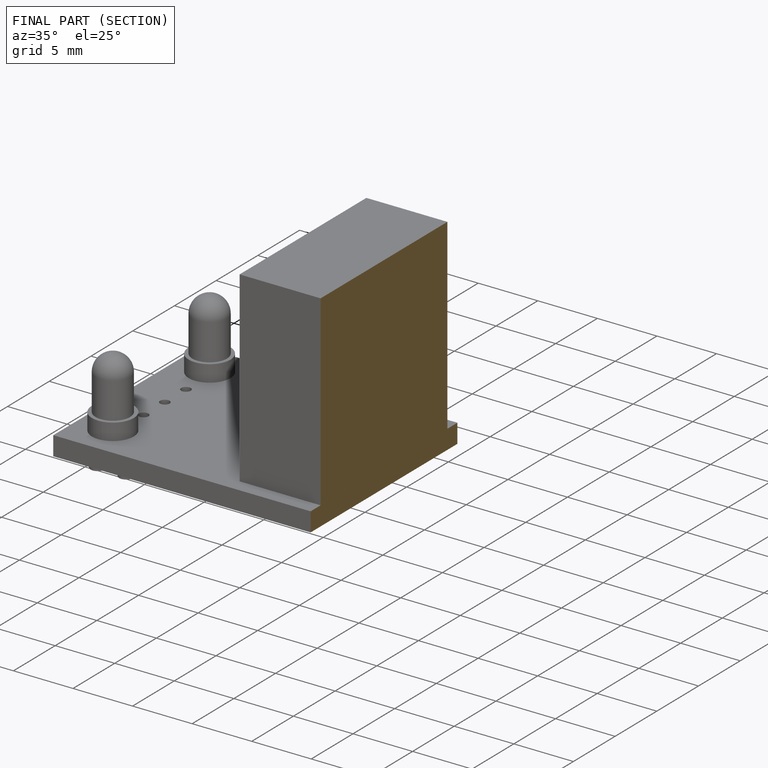
[diagram: finished part — half-section view (interior)]
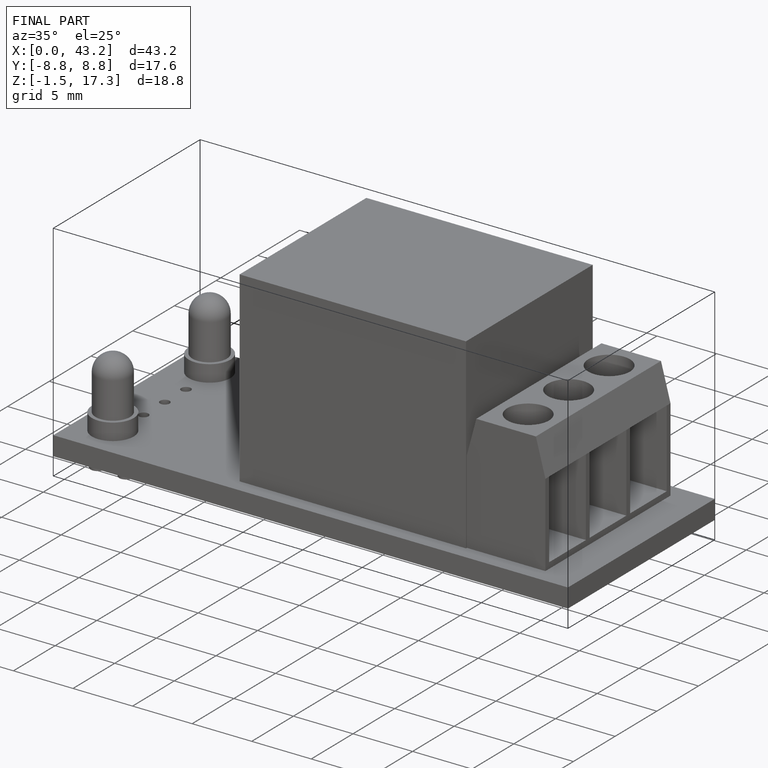
[diagram: finished part — iso view with bounding-box wireframe]
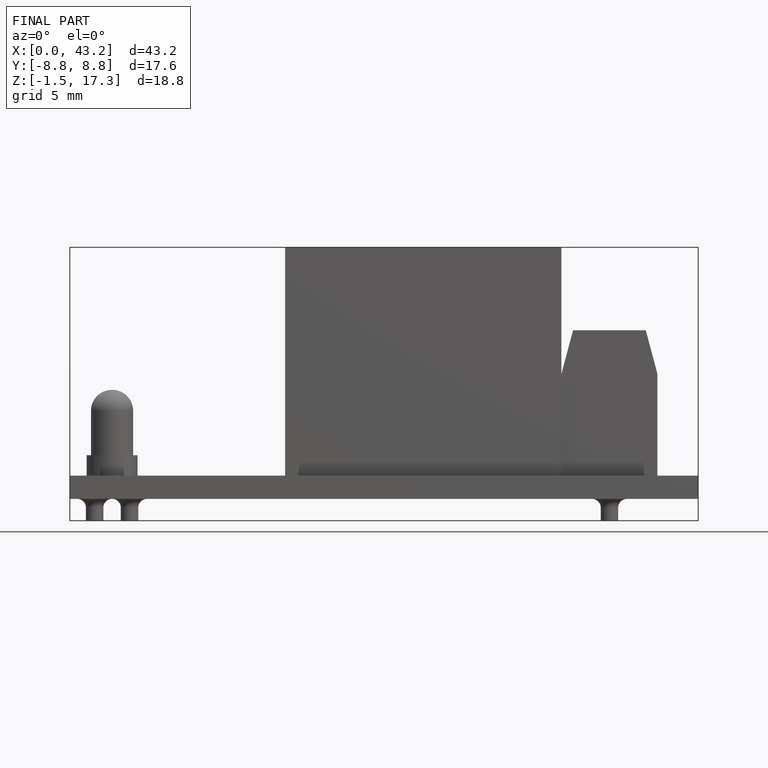
[diagram: finished part — front view with bounding-box wireframe]
